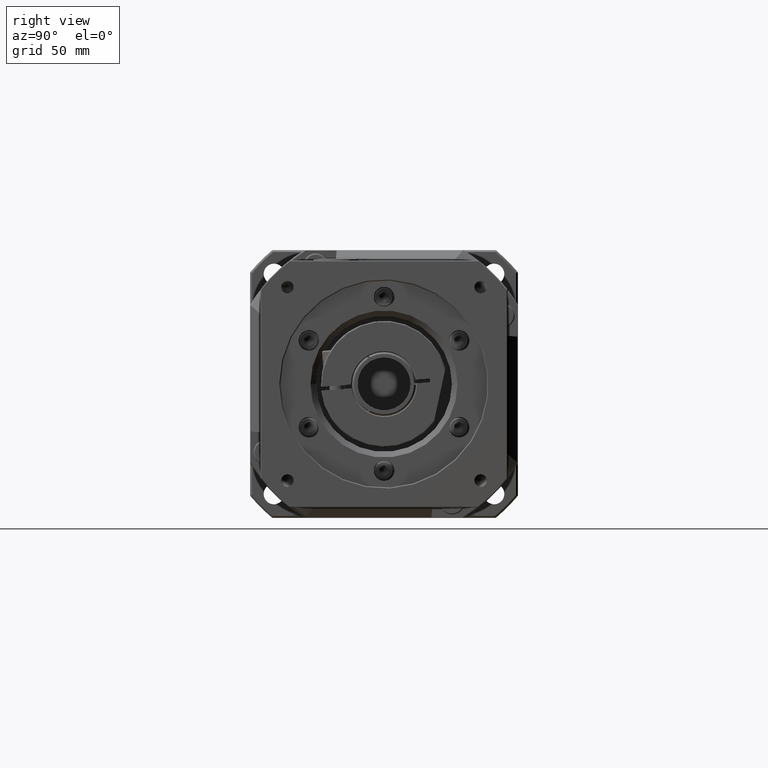
[diagram: clean part render]
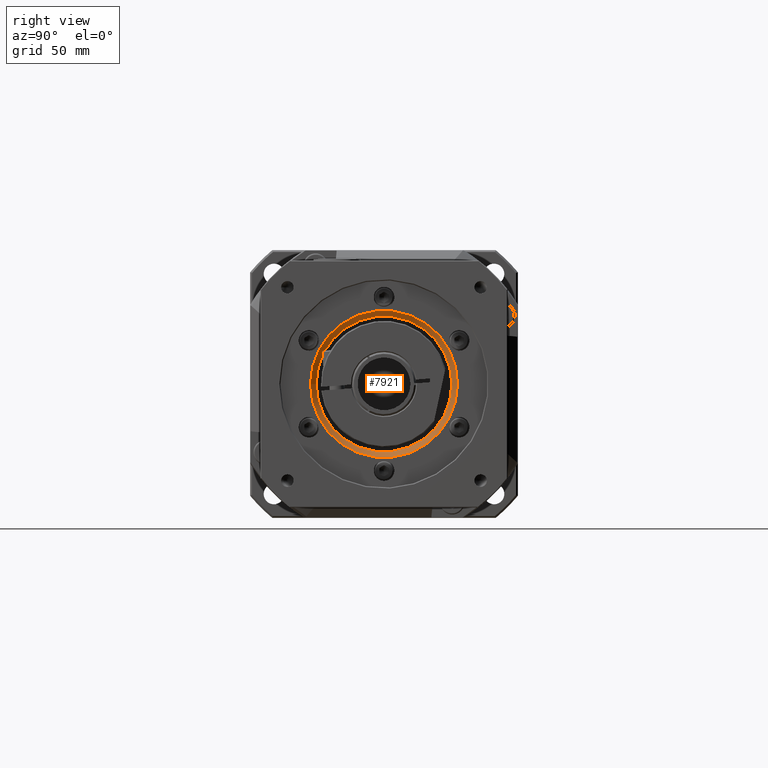
[diagram: same view with one face highlighted and labeled with its STEP entity id]
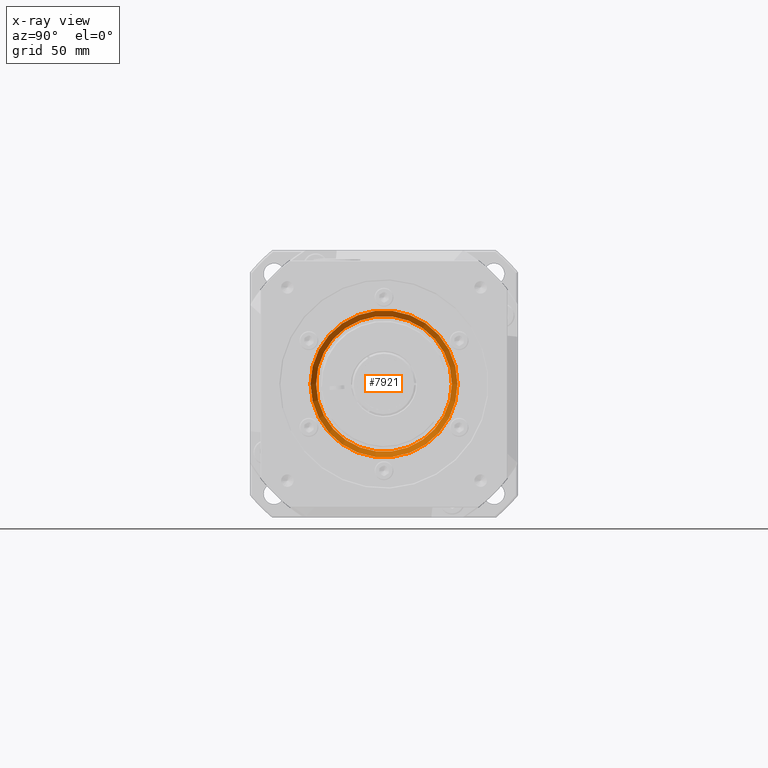
[diagram: x-ray of the same camera — body ghosted, the highlighted face saturated]
A machine part, right view. The second image highlights one B-rep face of the part: STEP entity #7921.
The next image is the same camera in x-ray: the body ghosted, the highlighted face saturated — about 0% of this face is hidden behind the body in this view.
In plain terms, the highlighted conical surface has half-angle 45 deg.
Its self-contained STEP definition (entity closure, byte-faithful):
#1080=CONICAL_SURFACE('',#8649,37.5,45.0000000000001);
#1581=FACE_BOUND('',#2597,.T.);
#1924=FACE_OUTER_BOUND('',#2596,.T.);
#2596=EDGE_LOOP('',(#5799));
#2597=EDGE_LOOP('',(#5800));
#3198=CIRCLE('',#8604,36.);
#3219=CIRCLE('',#8648,39.);
#3670=VERTEX_POINT('',#12433);
#3692=VERTEX_POINT('',#12537);
#4473=EDGE_CURVE('',#3670,#3670,#3198,.T.);
#4495=EDGE_CURVE('',#3692,#3692,#3219,.T.);
#5799=ORIENTED_EDGE('',*,*,#4473,.T.);
#5800=ORIENTED_EDGE('',*,*,#4495,.F.);
#7921=ADVANCED_FACE('',(#1924,#1581),#1080,.F.);
#8604=AXIS2_PLACEMENT_3D('',#12434,#9943,#9944);
#8648=AXIS2_PLACEMENT_3D('',#12538,#10031,#10032);
#8649=AXIS2_PLACEMENT_3D('',#12539,#10033,#10034);
#9943=DIRECTION('center_axis',(-1.,1.30595604156569E-21,1.15918820918505E-15));
#9944=DIRECTION('ref_axis',(-1.15918820918505E-15,1.88737914186277E-15,
-1.));
#10031=DIRECTION('center_axis',(-1.,1.30595604156569E-21,1.15918820918505E-15));
#10032=DIRECTION('ref_axis',(-1.15918820918505E-15,1.88737914186277E-15,
-1.));
#10033=DIRECTION('center_axis',(1.,-1.30595604156569E-21,-1.15918820918505E-15));
#10034=DIRECTION('ref_axis',(-1.30595604383211E-21,-1.,-1.95517902122919E-15));
#12433=CARTESIAN_POINT('',(-57.5593852728365,-186.310004596179,-77.0025259929324));
#12434=CARTESIAN_POINT('Origin',(-57.5593852728365,-150.310004596179,-77.0025259929324));
#12537=CARTESIAN_POINT('',(-54.5593852728365,-189.310004596179,-77.0025259929324));
#12538=CARTESIAN_POINT('Origin',(-54.5593852728365,-150.310004596179,-77.0025259929324));
#12539=CARTESIAN_POINT('Origin',(-56.0593852728365,-150.310004596179,-77.0025259929324));